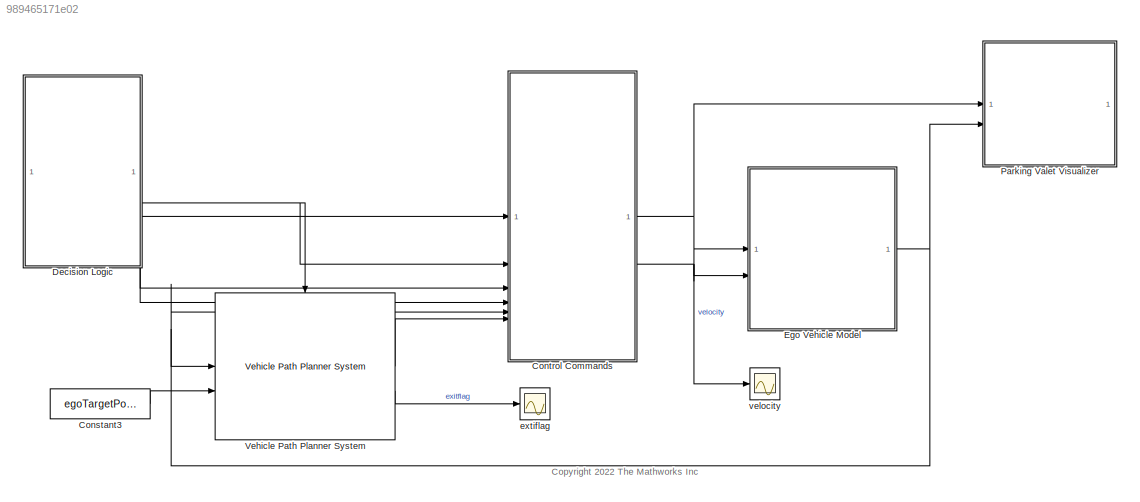
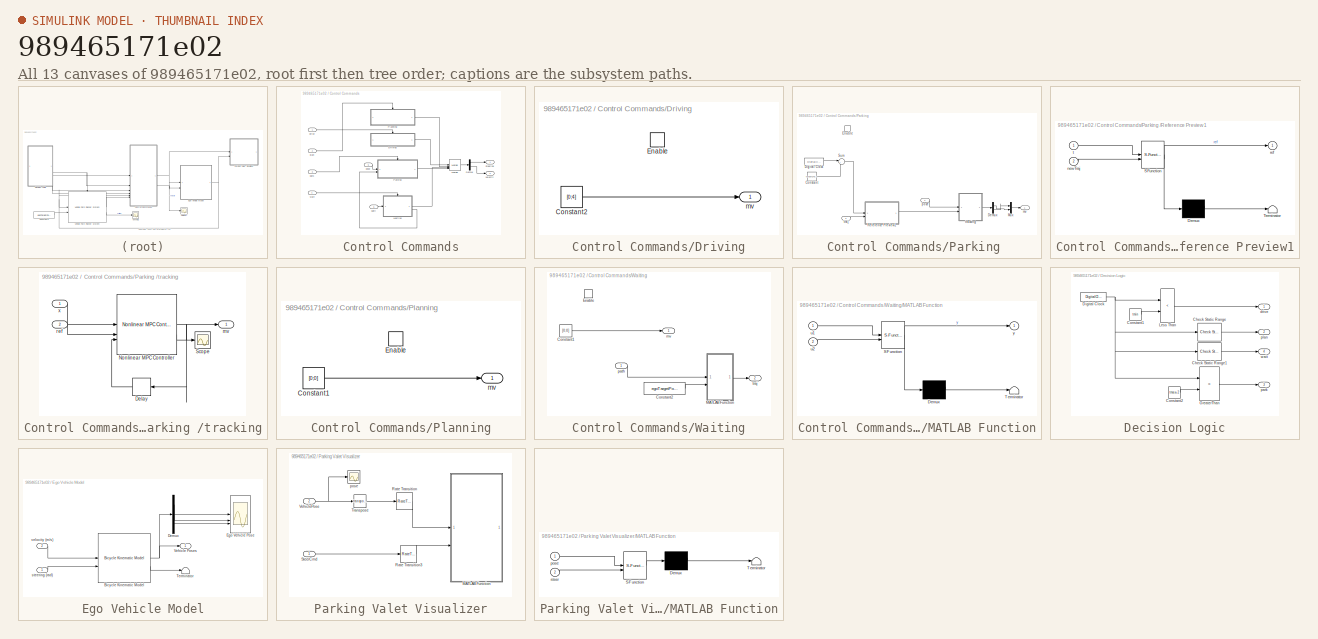
[diagram: thumbnail index - all 13 canvases of the model, root first then tree order]
MODEL slx_989465171e02
KIND model
CONFIG AbsTol = auto
CONFIG EnableMultiTasking = off
CONFIG FixedStep = auto
CONFIG MaxStep = auto
CONFIG MinStep = auto
CONFIG RelTol = 1e-3
CONFIG SampleTimeConstraint = Unconstrained
CONFIG SolverName = VariableStepAuto
CONFIG StartTime = 0.0
CONFIG StopTime = Duration
BLOCK [Constant] Constant3
  Value = egoTargetPose
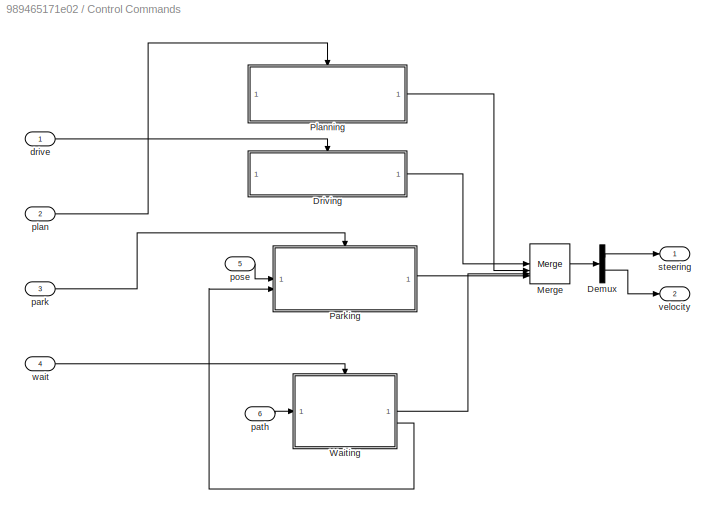
BLOCK [SubSystem] Control Commands
BLOCK [Demux] Control Commands/Demux
  Outputs = 2
BLOCK [SubSystem] Control Commands/Driving
  TreatAsAtomicUnit = on
BLOCK [Constant] Control Commands/Driving/Constant2
  Value = [0;4]
  VectorParams1D = off
BLOCK [EnablePort] Control Commands/Driving/Enable
  StatesWhenEnabling = reset
BLOCK [Outport] Control Commands/Driving/mv
BLOCK [Merge] Control Commands/Merge
  Inputs = 4
BLOCK [SubSystem] Control Commands/Parking 
  TreatAsAtomicUnit = on
BLOCK [Constant] Control Commands/Parking /Constant
  Value = tmax+2+0.1
BLOCK [Demux] Control Commands/Parking /Demux
  Outputs = 2
BLOCK [DigitalClock] Control Commands/Parking /Digital Clock
  SampleTime = 0.1
BLOCK [EnablePort] Control Commands/Parking /Enable
  StatesWhenEnabling = reset
BLOCK [Mux] Control Commands/Parking /Mux
  DisplayOption = bar
  Inputs = 2
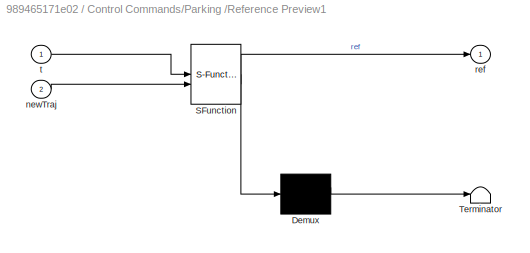
BLOCK [SubSystem] Control Commands/Parking /Reference Preview1
  ErrorFcn = Stateflow.Translate.translate
  PermitHierarchicalResolution = ExplicitOnly
  SFBlockType = MATLAB Function
  TreatAsAtomicUnit = on
BLOCK [Demux] Control Commands/Parking /Reference Preview1/ Demux 
  Outputs = 1
BLOCK [S-Function] Control Commands/Parking /Reference Preview1/ SFunction 
  EnableBusSupport = off
  FunctionName = sf_sfun
  Parameters = Duration,Ts,pTracking
  PortCounts = [2 2]
  SFcnIsStateOwnerBlock = off
  SFunctionDeploymentMode = off
  Tag = Stateflow S-Function 5
BLOCK [Terminator] Control Commands/Parking /Reference Preview1/ Terminator 
BLOCK [Inport] Control Commands/Parking /Reference Preview1/newTraj
  Port = 2
BLOCK [Outport] Control Commands/Parking /Reference Preview1/ref
  VectorParamsAs1DForOutWhenUnconnected = off
BLOCK [Inport] Control Commands/Parking /Reference Preview1/t
BLOCK [Sum] Control Commands/Parking /Sum
  Inputs = |+-
BLOCK [Outport] Control Commands/Parking /mv
BLOCK [Inport] Control Commands/Parking /pose
BLOCK [SubSystem] Control Commands/Parking /tracking
BLOCK [Delay] Control Commands/Parking /tracking/Delay
  DelayLength = 1
  InputPortMap = u0
  NameLocation = top
BLOCK [Reference] Control Commands/Parking /tracking/Nonlinear MPC Controller  REF=mpclib/Nonlinear MPC Controller  (lib defined in mdl_ae329e0e0455)
  SCDEnableBlockLinearizationSpecification = on
  SourceBlock = mpclib/Nonlinear MPC Controller
  SourceType = NonlinearMPC
BLOCK [Scope] Control Commands/Parking /tracking/Scope
  Floating = off
  NumInputPorts = 1
  ScopeSpecificationString = Simulink.scopes.TimeScopeBlockCfg('CurrentConfiguration', extmgr.ConfigurationSet(extmgr.Configuration('Core','General UI',true),extmgr.Configuration('Core','Source UI',true),extmgr.Configuration('Sources','WiredSimulink',true,'DataLoggingVariableName','ScopeData1','DataLoggingSaveFormat','Array','DataLoggingLimitDataPoints',true,'DataLoggingDecimation','1'),extmgr.Configuration('Visuals','Time Do...<+1646ch>
BLOCK [Outport] Control Commands/Parking /tracking/mv
BLOCK [Inport] Control Commands/Parking /tracking/ref
  Port = 2
BLOCK [Inport] Control Commands/Parking /tracking/x
BLOCK [Inport] Control Commands/Parking /traj
  Port = 2
BLOCK [SubSystem] Control Commands/Planning
  TreatAsAtomicUnit = on
BLOCK [Constant] Control Commands/Planning/Constant1
  Value = [0;0]
  VectorParams1D = off
BLOCK [EnablePort] Control Commands/Planning/Enable
  StatesWhenEnabling = reset
BLOCK [Outport] Control Commands/Planning/mv
BLOCK [SubSystem] Control Commands/Waiting
  TreatAsAtomicUnit = on
BLOCK [Constant] Control Commands/Waiting/Constant1
  Value = [0;0]
  VectorParams1D = off
BLOCK [Constant] Control Commands/Waiting/Constant2
  Value = egoTargetPose
BLOCK [EnablePort] Control Commands/Waiting/Enable
  StatesWhenEnabling = reset
BLOCK [SubSystem] Control Commands/Waiting/MATLAB Function
  ErrorFcn = Stateflow.Translate.translate
  PermitHierarchicalResolution = ExplicitOnly
  SFBlockType = MATLAB Function
  TreatAsAtomicUnit = on
BLOCK [Demux] Control Commands/Waiting/MATLAB Function/ Demux 
  Outputs = 1
BLOCK [S-Function] Control Commands/Waiting/MATLAB Function/ SFunction 
  EnableBusSupport = off
  FunctionName = sf_sfun
  Parameters = Duration
  PortCounts = [2 2]
  SFcnIsStateOwnerBlock = off
  SFunctionDeploymentMode = off
  Tag = Stateflow S-Function 1
BLOCK [Terminator] Control Commands/Waiting/MATLAB Function/ Terminator 
BLOCK [Inport] Control Commands/Waiting/MATLAB Function/u1
BLOCK [Inport] Control Commands/Waiting/MATLAB Function/u2
  Port = 2
BLOCK [Outport] Control Commands/Waiting/MATLAB Function/y
BLOCK [Outport] Control Commands/Waiting/mv
BLOCK [Inport] Control Commands/Waiting/path
BLOCK [Outport] Control Commands/Waiting/traj
  Port = 2
BLOCK [Inport] Control Commands/drive
BLOCK [Inport] Control Commands/park
  Port = 3
BLOCK [Inport] Control Commands/path
  Port = 6
BLOCK [Inport] Control Commands/plan
  Port = 2
BLOCK [Inport] Control Commands/pose
  Port = 5
BLOCK [Outport] Control Commands/steering
BLOCK [Outport] Control Commands/velocity
  Port = 2
BLOCK [Inport] Control Commands/wait
  Port = 4
BLOCK [SubSystem] Decision Logic
BLOCK [Reference] Decision Logic/Check Static Range  REF=simulink/Model
Verification/Check 
Static Range
  Description = tmin <= u <= tmax
  SourceBlock = simulink/Model\nVerification/Check \nStatic Range
  SourceType = Checks_SRange
BLOCK [Reference] Decision Logic/Check Static Range1  REF=simulink/Model
Verification/Check 
Static Range
  Description = tmax < u <= tmax+2
  SourceBlock = simulink/Model\nVerification/Check \nStatic Range
  SourceType = Checks_SRange
BLOCK [Constant] Decision Logic/Constant1
  Value = tmin
BLOCK [Constant] Decision Logic/Constant2
  Value = tmax+2
BLOCK [DigitalClock] Decision Logic/Digital Clock
  SampleTime = 0.1
BLOCK [RelationalOperator] Decision Logic/GreaterThan
  InputSameDT = off
  Operator = >
  OutDataTypeStr = boolean
  RndMeth = Simplest
BLOCK [RelationalOperator] Decision Logic/Less Than
  InputSameDT = off
  Operator = <
  OutDataTypeStr = boolean
  RndMeth = Simplest
BLOCK [Outport] Decision Logic/drive
BLOCK [Outport] Decision Logic/park
  Port = 3
BLOCK [Outport] Decision Logic/plan
  Port = 2
BLOCK [Outport] Decision Logic/wait
  Port = 4
BLOCK [SubSystem] Ego Vehicle Model
BLOCK [Reference] Ego Vehicle Model/Bicycle Kinematic Model  REF=robotmobilelib/Bicycle Kinematic Model
  SourceBlock = robotmobilelib/Bicycle Kinematic Model
  SourceType = Bicycle Kinematic Model
BLOCK [Demux] Ego Vehicle Model/Demux
  Outputs = 3
BLOCK [Scope] Ego Vehicle Model/Ego Vehicle Pose
  Floating = off
  NumInputPorts = 3
  ScopeSpecificationString = Simulink.scopes.TimeScopeBlockCfg('CurrentConfiguration', extmgr.ConfigurationSet(extmgr.Configuration('Core','General UI',true),extmgr.Configuration('Core','Source UI',true),extmgr.Configuration('Sources','WiredSimulink',true,'DataLoggingVariableName','ScopeData1'),extmgr.Configuration('Visuals','Time Domain',true,'SerializedDisplays',{struct('MinYLimReal','1.6879','MaxYLimReal','29.80888','YLabe...<+2745ch>
BLOCK [Terminator] Ego Vehicle Model/Terminator
BLOCK [Outport] Ego Vehicle Model/Vehicle Poses
BLOCK [Inport] Ego Vehicle Model/steering (rad)
BLOCK [Inport] Ego Vehicle Model/velocity (m//s)
  Port = 2
BLOCK [SubSystem] Parking Valet Visualizer
BLOCK [SubSystem] Parking Valet Visualizer/MATLAB Function
  ErrorFcn = Stateflow.Translate.translate
  PermitHierarchicalResolution = ExplicitOnly
  SFBlockType = MATLAB Function
  TreatAsAtomicUnit = on
BLOCK [Demux] Parking Valet Visualizer/MATLAB Function/ Demux 
  Outputs = 1
BLOCK [S-Function] Parking Valet Visualizer/MATLAB Function/ SFunction 
  EnableBusSupport = off
  FunctionName = sf_sfun
  Parameters = costmapStruct
  PortCounts = [2 1]
  SFcnIsStateOwnerBlock = off
  SFunctionDeploymentMode = off
  Tag = Stateflow S-Function 2
BLOCK [Terminator] Parking Valet Visualizer/MATLAB Function/ Terminator 
BLOCK [Inport] Parking Valet Visualizer/MATLAB Function/pose
BLOCK [Inport] Parking Valet Visualizer/MATLAB Function/steer
  Port = 2
BLOCK [RateTransition] Parking Valet Visualizer/Rate Transition
  OutPortSampleTime = Tv
BLOCK [RateTransition] Parking Valet Visualizer/Rate Transition3
  OutPortSampleTime = Tv
BLOCK [Inport] Parking Valet Visualizer/SteerCmd
BLOCK [Math] Parking Valet Visualizer/Transpose
  Operator = transpose
BLOCK [Inport] Parking Valet Visualizer/VehiclePose
  Port = 2
BLOCK [Scope] Parking Valet Visualizer/pose
  Floating = off
  NumInputPorts = 1
  ScopeSpecificationString = Simulink.scopes.TimeScopeBlockCfg('CurrentConfiguration', extmgr.ConfigurationSet(extmgr.Configuration('Core','General UI',true),extmgr.Configuration('Core','Source UI',true),extmgr.Configuration('Sources','WiredSimulink',true,'DataLoggingVariableName','ScopeData2'),extmgr.Configuration('Visuals','Time Domain',true,'SerializedDisplays',{struct('MinYLimReal','-5.16751','MaxYLimReal','30.79622','YLa...<+1387ch>
BLOCK [Reference] Vehicle Path Planner System  REF=mpcadaslib/Vehicle Path Planner System
  LibrarySourceBlock = mpclib/Automated Driving/Vehicle Path Planner System
  SourceBlock = mpcadaslib/Vehicle Path Planner System
  SourceType = Vehicle Path Planner (VPP) system
BLOCK [Scope] extiflag
  Floating = off
  NumInputPorts = 1
  ScopeSpecificationString = Simulink.scopes.TimeScopeBlockCfg('CurrentConfiguration', extmgr.ConfigurationSet(extmgr.Configuration('Core','General UI',true),extmgr.Configuration('Core','Source UI',true),extmgr.Configuration('Sources','WiredSimulink',true,'DataLoggingVariableName','ScopeData1'),extmgr.Configuration('Visuals','Time Domain',true,'SerializedDisplays',{struct('MinYLimReal','-0.125','MaxYLimReal','1.125','YLabelRe...<+1384ch>
BLOCK [Scope] velocity
  Floating = off
  NumInputPorts = 1
  ScopeSpecificationString = Simulink.scopes.TimeScopeBlockCfg('CurrentConfiguration', extmgr.ConfigurationSet(extmgr.Configuration('Core','General UI',true),extmgr.Configuration('Core','Source UI',true),extmgr.Configuration('Sources','WiredSimulink',true,'DataLoggingVariableName','ScopeData1'),extmgr.Configuration('Visuals','Time Domain',true,'SerializedDisplays',{struct('MinYLimReal','-1.83103','MaxYLimReal','4.64789','YLab...<+1432ch>
ANNOTATION (root): <copyright redacted>
LINE Constant3:1 -> Vehicle Path Planner System:2
LINE Control Commands/Demux:1 -> Control Commands/steering:1
LINE Control Commands/Demux:2 -> Control Commands/velocity:1
LINE Control Commands/Driving/Constant2:1 -> Control Commands/Driving/mv:1
LINE Control Commands/Driving:1 -> Control Commands/Merge:1
LINE Control Commands/Merge:1 -> Control Commands/Demux:1
LINE Control Commands/Parking /Constant:1 -> Control Commands/Parking /Sum:2
LINE Control Commands/Parking /Demux:1 -> Control Commands/Parking /Mux:2
LINE Control Commands/Parking /Demux:2 -> Control Commands/Parking /Mux:1
LINE Control Commands/Parking /Digital Clock:1 -> Control Commands/Parking /Sum:1
LINE Control Commands/Parking /Mux:1 -> Control Commands/Parking /mv:1
LINE Control Commands/Parking /Reference Preview1:1 -> Control Commands/Parking /tracking:2
LINE Control Commands/Parking /Sum:1 -> Control Commands/Parking /Reference Preview1:1
LINE Control Commands/Parking /pose:1 -> Control Commands/Parking /tracking:1
LINE Control Commands/Parking /tracking/Delay:1 -> Control Commands/Parking /tracking/Nonlinear MPC Controller:3
NET Control Commands/Parking /tracking/Nonlinear MPC Controller:1 -> Control Commands/Parking /tracking/Delay:1, Control Commands/Parking /tracking/mv:1
LINE Control Commands/Parking /tracking/Nonlinear MPC Controller:2 -> Control Commands/Parking /tracking/Scope:1
LINE Control Commands/Parking /tracking/ref:1 -> Control Commands/Parking /tracking/Nonlinear MPC Controller:2
LINE Control Commands/Parking /tracking/x:1 -> Control Commands/Parking /tracking/Nonlinear MPC Controller:1
LINE Control Commands/Parking /tracking:1 -> Control Commands/Parking /Demux:1
LINE Control Commands/Parking /traj:1 -> Control Commands/Parking /Reference Preview1:2
LINE Control Commands/Parking :1 -> Control Commands/Merge:4
LINE Control Commands/Planning/Constant1:1 -> Control Commands/Planning/mv:1
LINE Control Commands/Planning:1 -> Control Commands/Merge:2
LINE Control Commands/Waiting/Constant1:1 -> Control Commands/Waiting/mv:1
LINE Control Commands/Waiting/Constant2:1 -> Control Commands/Waiting/MATLAB Function:2
LINE Control Commands/Waiting/MATLAB Function:1 -> Control Commands/Waiting/traj:1
LINE Control Commands/Waiting/path:1 -> Control Commands/Waiting/MATLAB Function:1
LINE Control Commands/Waiting:1 -> Control Commands/Merge:3
LINE Control Commands/Waiting:2 -> Control Commands/Parking :2
LINE Control Commands/drive:1 -> Control Commands/Driving:enable
LINE Control Commands/park:1 -> Control Commands/Parking :enable
LINE Control Commands/path:1 -> Control Commands/Waiting:1
LINE Control Commands/plan:1 -> Control Commands/Planning:enable
LINE Control Commands/pose:1 -> Control Commands/Parking :1
LINE Control Commands/wait:1 -> Control Commands/Waiting:enable
NET Control Commands:1 -> Ego Vehicle Model:1, Parking Valet Visualizer:1
NET Control Commands:2 -> Ego Vehicle Model:2, velocity:1
LINE Decision Logic/Check Static Range1:1 -> Decision Logic/wait:1
LINE Decision Logic/Check Static Range:1 -> Decision Logic/plan:1
LINE Decision Logic/Constant1:1 -> Decision Logic/Less Than:2
LINE Decision Logic/Constant2:1 -> Decision Logic/GreaterThan:2
NET Decision Logic/Digital Clock:1 -> Decision Logic/Check Static Range1:1, Decision Logic/Check Static Range:1, Decision Logic/GreaterThan:1, Decision Logic/Less Than:1
LINE Decision Logic/GreaterThan:1 -> Decision Logic/park:1
LINE Decision Logic/Less Than:1 -> Decision Logic/drive:1
LINE Decision Logic:1 -> Control Commands:1
NET Decision Logic:2 -> Control Commands:2, Vehicle Path Planner System:enable
LINE Decision Logic:3 -> Control Commands:3
LINE Decision Logic:4 -> Control Commands:4
NET Ego Vehicle Model/Bicycle Kinematic Model:1 -> Ego Vehicle Model/Demux:1, Ego Vehicle Model/Vehicle Poses:1
LINE Ego Vehicle Model/Bicycle Kinematic Model:2 -> Ego Vehicle Model/Terminator:1
LINE Ego Vehicle Model/Demux:1 -> Ego Vehicle Model/Ego Vehicle Pose:1
LINE Ego Vehicle Model/Demux:2 -> Ego Vehicle Model/Ego Vehicle Pose:2
LINE Ego Vehicle Model/Demux:3 -> Ego Vehicle Model/Ego Vehicle Pose:3
LINE Ego Vehicle Model/steering (rad):1 -> Ego Vehicle Model/Bicycle Kinematic Model:2
LINE Ego Vehicle Model/velocity (m//s):1 -> Ego Vehicle Model/Bicycle Kinematic Model:1
NET Ego Vehicle Model:1 -> Control Commands:5, Parking Valet Visualizer:2, Vehicle Path Planner System:1
LINE Parking Valet Visualizer/Rate Transition3:1 -> Parking Valet Visualizer/MATLAB Function:2
LINE Parking Valet Visualizer/Rate Transition:1 -> Parking Valet Visualizer/MATLAB Function:1
LINE Parking Valet Visualizer/SteerCmd:1 -> Parking Valet Visualizer/Rate Transition3:1
LINE Parking Valet Visualizer/Transpose:1 -> Parking Valet Visualizer/Rate Transition:1
NET Parking Valet Visualizer/VehiclePose:1 -> Parking Valet Visualizer/Transpose:1, Parking Valet Visualizer/pose:1
LINE Vehicle Path Planner System:1 -> Control Commands:6
LINE Vehicle Path Planner System:2 -> extiflag:1
note: NET lines group one-source signal fan-out (src -> all destinations, sorted); 1:1 wires keep LINE
CHART Control Commands/Waiting/MATLAB Function states=1 transitions=1
  STATE_LABEL 'eML_blk_kernel()'
  STATE_LABEL 'SCRIPT:\n\nfunction y = fcn(u1,u2, Duration)\n\ntraj = mpcInterpolatePathVPP(u1,u2,3,5);\nTs = 0.1;\n%Duration = 25;\nTsteps = Duration/Ts;\ny = [traj;repmat(traj(end,:),Tsteps-size(traj,1),1)];\n'
CHART Parking Valet Visualizer/MATLAB Function states=1 transitions=1
  STATE_LABEL 'eML_blk_kernel()'
  STATE_LABEL "SCRIPT:\nfunction visualizeParkingValet(pose, steer, costmapStruct)\n\n%visualizePath Display simulation results.\n\ncoder.extrinsic('helperSLVisualizeParkingValet');\n\nhelperSLVisualizeParkingValet(pose, steer, costmapStruct);"
CHART Control Commands/Parking
/Reference Preview1 states=1 transitions=1
  STATE_LABEL 'eML_blk_kernel()'
  STATE_LABEL 'SCRIPT:\nfunction ref = fcn(t,Ts, pTracking, Duration, newTraj)\nTend = Duration;\nT = t+(1:pTracking)*Ts;\nT = min(T,Tend);\n% Tsteps = Duration/Ts;\n% p = length(traj)-1;\n% Xref = [traj(2:p+1,:);repmat(traj(end,:),Tsteps-p,1)];\n% time = Ts*(1:length(Xref));\n% ref = interp1(time,Xref,T);\n\ntime = Ts*(1:length(newTraj));\nref = interp1(time,newTraj,T);'
CHART  states=0 transitions=0
CHART  states=0 transitions=0
CHART  states=0 transitions=0
